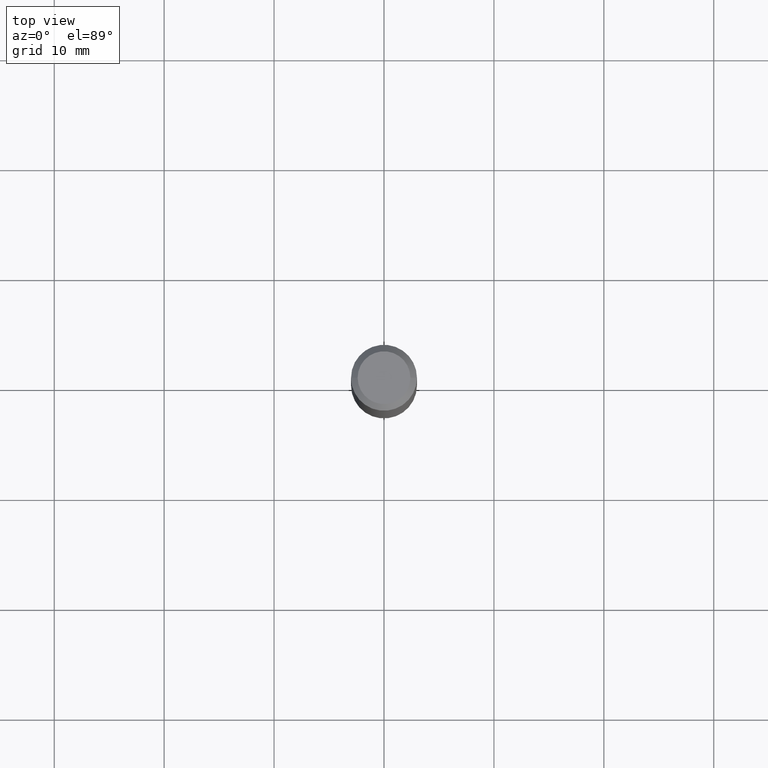
[diagram: clean part render]
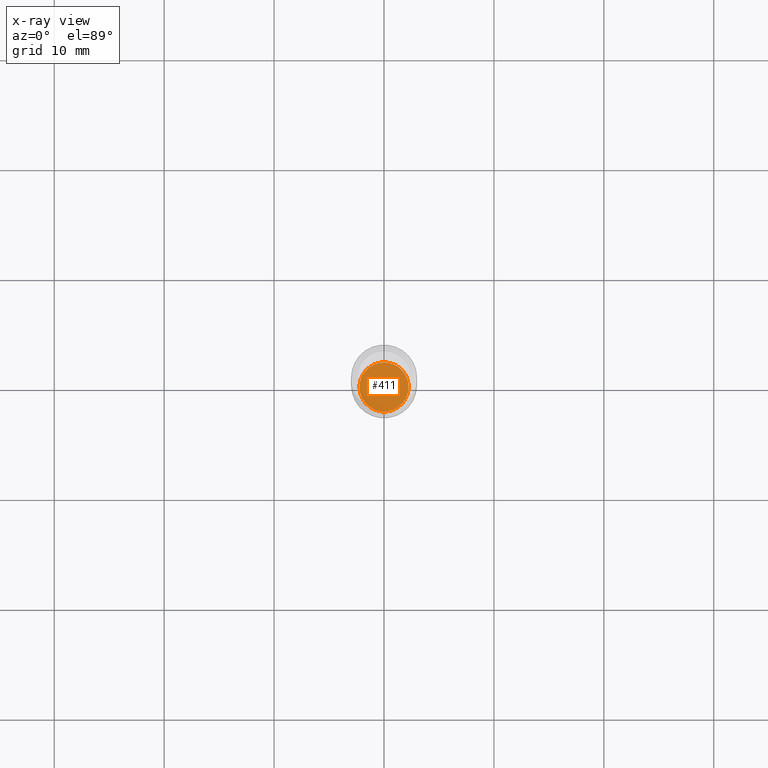
[diagram: x-ray — body ghosted, one internal face saturated and labeled with its STEP entity id]
A machine part, top view, then the same camera in x-ray: the body is ghosted and one INTERNAL B-rep face — a face not visible from any outside direction — is saturated and labeled: STEP entity #411.
In plain terms, the highlighted planar face has unit normal (-0, 0, 1).
Its self-contained STEP definition (entity closure, byte-faithful):
#22 = CIRCLE ( 'NONE', #81, 0.08809999999999999776 ) ;
#46 = DIRECTION ( 'NONE',  ( -2.445468806185136597E-29, 3.491481338843145583E-15, 1.000000000000000000 ) ) ;
#81 = AXIS2_PLACEMENT_3D ( 'NONE', #240, #46, #164 ) ;
#112 = EDGE_LOOP ( 'NONE', ( #199, #467 ) ) ;
#117 = CIRCLE ( 'NONE', #243, 0.08809999999999999776 ) ;
#143 = CARTESIAN_POINT ( 'NONE',  ( 4.717553874011746679E-29, -6.735416650762311704E-15, -1.929099999999999815 ) ) ;
#164 = DIRECTION ( 'NONE',  ( 1.000000000000000000, -6.982962677686264344E-15, 0.000000000000000000 ) ) ;
#199 = ORIENTED_EDGE ( 'NONE', *, *, #282, .F. ) ;
#206 = VERTEX_POINT ( 'NONE', #224 ) ;
#221 = DIRECTION ( 'NONE',  ( -2.445468806185136597E-29, 3.491481338843145583E-15, 1.000000000000000000 ) ) ;
#224 = CARTESIAN_POINT ( 'NONE',  ( 0.08809999999999999776, -7.350615662666470861E-15, -1.929099999999999815 ) ) ;
#240 = CARTESIAN_POINT ( 'NONE',  ( 4.717553874011746679E-29, -6.735416650762311704E-15, -1.929099999999999815 ) ) ;
#243 = AXIS2_PLACEMENT_3D ( 'NONE', #143, #221, #301 ) ;
#282 = EDGE_CURVE ( 'NONE', #206, #469, #117, .T. ) ;
#285 = AXIS2_PLACEMENT_3D ( 'NONE', #463, #427, #421 ) ;
#301 = DIRECTION ( 'NONE',  ( 1.000000000000000000, -6.982962677686264344E-15, 0.000000000000000000 ) ) ;
#312 = FACE_OUTER_BOUND ( 'NONE', #112, .T. ) ;
#343 = CARTESIAN_POINT ( 'NONE',  ( -0.08809999999999999776, -6.106779273383552551E-15, -1.929099999999999815 ) ) ;
#385 = PLANE ( 'NONE',  #285 ) ;
#411 = ADVANCED_FACE ( 'NONE', ( #312 ), #385, .F. ) ;
#421 = DIRECTION ( 'NONE',  ( 1.000000000000000000, -6.982962677686265922E-15, 4.876176775795935793E-29 ) ) ;
#427 = DIRECTION ( 'NONE',  ( -2.438088387897960049E-29, 3.491481338843145188E-15, 1.000000000000000000 ) ) ;
#460 = EDGE_CURVE ( 'NONE', #469, #206, #22, .T. ) ;
#463 = CARTESIAN_POINT ( 'NONE',  ( 4.717553874011746679E-29, -6.735416650762311704E-15, -1.929099999999999815 ) ) ;
#467 = ORIENTED_EDGE ( 'NONE', *, *, #460, .F. ) ;
#469 = VERTEX_POINT ( 'NONE', #343 ) ;